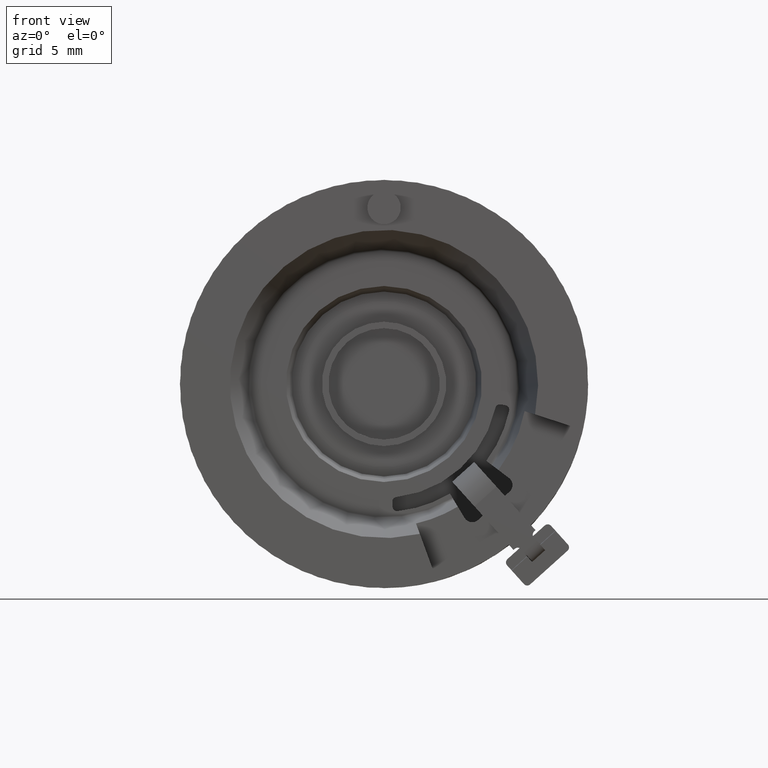
[diagram: clean part render]
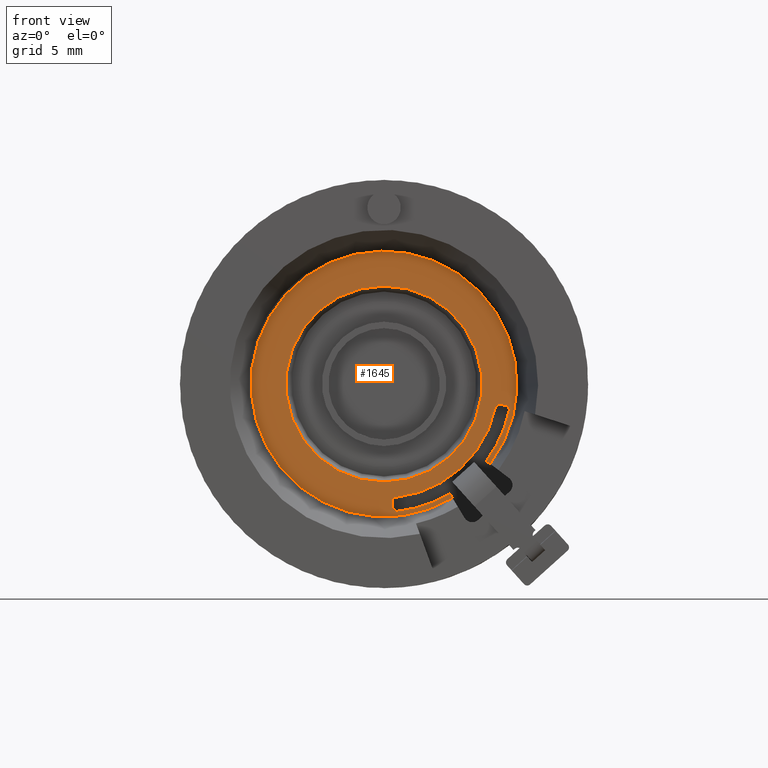
[diagram: same view with one face highlighted and labeled with its STEP entity id]
A machine part, front view. The second image highlights one B-rep face of the part: STEP entity #1645.
In plain terms, the highlighted planar face has unit normal (0, -1, 0).
Its self-contained STEP definition (entity closure, byte-faithful):
#255=DIRECTION('',(-5.150380749100E-1,0.E0,8.571673007021E-1));
#256=VECTOR('',#255,2.691907386034E-1);
#257=CARTESIAN_POINT('',(3.689969440808E0,3.8E0,-6.141140430837E0));
#258=LINE('',#257,#256);
#259=DIRECTION('',(7.986355100473E-1,0.E0,-6.018150231521E-1));
#260=VECTOR('',#259,2.691907386034E-1);
#261=CARTESIAN_POINT('',(5.506806503022E0,3.8E0,-4.149676343484E0));
#262=LINE('',#261,#260);
#263=CARTESIAN_POINT('',(0.E0,3.8E0,0.E0));
#264=DIRECTION('',(0.E0,1.E0,0.E0));
#265=DIRECTION('',(9.779330806408E-1,0.E0,-2.089183806857E-1));
#266=AXIS2_PLACEMENT_3D('',#263,#264,#265);
#268=CARTESIAN_POINT('',(6.509246307949E0,3.8E0,-1.390587173153E0));
#269=DIRECTION('',(0.E0,1.E0,0.E0));
#270=DIRECTION('',(1.736481776669E-1,0.E0,9.848077530122E-1));
#271=AXIS2_PLACEMENT_3D('',#268,#269,#270);
#273=DIRECTION('',(9.848077530122E-1,0.E0,-1.736481776669E-1));
#274=VECTOR('',#273,2.791874538885E-1);
#275=CARTESIAN_POINT('',(6.275826958205E0,3.8E0,-1.106597618989E0));
#276=LINE('',#275,#274);
#277=CARTESIAN_POINT('',(6.234300338816E0,3.8E0,-1.342106780558E0));
#278=DIRECTION('',(0.E0,1.E0,0.E0));
#279=DIRECTION('',(-9.776032597901E-1,0.E0,2.104563290752E-1));
#280=AXIS2_PLACEMENT_3D('',#277,#278,#279);
#282=CARTESIAN_POINT('',(0.E0,3.8E0,0.E0));
#283=DIRECTION('',(0.E0,1.E0,0.E0));
#284=DIRECTION('',(9.776032597901E-1,0.E0,-2.104563290753E-1));
#285=AXIS2_PLACEMENT_3D('',#282,#283,#284);
#287=CARTESIAN_POINT('',(6.830927452216E-1,3.8E0,-6.340436548567E0));
#288=DIRECTION('',(0.E0,1.E0,0.E0));
#289=DIRECTION('',(-9.975640502598E-1,0.E0,-6.975647374412E-2));
#290=AXIS2_PLACEMENT_3D('',#287,#288,#289);
#292=DIRECTION('',(-6.975647374413E-2,0.E0,9.975640502598E-1));
#293=VECTOR('',#292,2.791874538885E-1);
#294=CARTESIAN_POINT('',(4.640081460690E-1,3.8E0,-6.635625637328E0));
#295=LINE('',#294,#293);
#296=CARTESIAN_POINT('',(7.025678775185E-1,3.8E0,-6.618943915850E0));
#297=DIRECTION('',(0.E0,1.E0,0.E0));
#298=DIRECTION('',(1.055520618389E-1,0.E0,-9.944137781837E-1));
#299=AXIS2_PLACEMENT_3D('',#296,#297,#298);
#301=CARTESIAN_POINT('',(0.E0,3.8E0,0.E0));
#302=DIRECTION('',(0.E0,1.E0,0.E0));
#303=DIRECTION('',(5.150380749101E-1,0.E0,-8.571673007021E-1));
#304=AXIS2_PLACEMENT_3D('',#301,#302,#303);
#306=CARTESIAN_POINT('',(0.E0,3.8E0,0.E0));
#307=DIRECTION('',(0.E0,-1.E0,0.E0));
#308=DIRECTION('',(0.E0,0.E0,1.E0));
#309=AXIS2_PLACEMENT_3D('',#306,#307,#308);
#311=CARTESIAN_POINT('',(0.E0,3.8E0,0.E0));
#312=DIRECTION('',(0.E0,-1.E0,0.E0));
#313=DIRECTION('',(0.E0,0.E0,-1.E0));
#314=AXIS2_PLACEMENT_3D('',#311,#312,#313);
#333=CARTESIAN_POINT('',(0.E0,3.8E0,0.E0));
#334=DIRECTION('',(0.E0,-1.E0,0.E0));
#335=DIRECTION('',(7.986355100473E-1,0.E0,-6.018150231520E-1));
#336=AXIS2_PLACEMENT_3D('',#333,#334,#335);
#1083=CARTESIAN_POINT('',(3.689969440808E0,3.8E0,-6.141140430837E0));
#1084=CARTESIAN_POINT('',(3.551325961014E0,3.8E0,-5.910398932054E0));
#1085=VERTEX_POINT('',#1083);
#1086=VERTEX_POINT('',#1084);
#1087=CARTESIAN_POINT('',(7.278098371899E-1,3.8E0,-6.856750284084E0));
#1088=VERTEX_POINT('',#1087);
#1089=CARTESIAN_POINT('',(4.640081460690E-1,3.8E0,-6.635625637328E0));
#1090=VERTEX_POINT('',#1089);
#1091=CARTESIAN_POINT('',(4.445330137721E-1,3.8E0,-6.357118270045E0));
#1092=VERTEX_POINT('',#1091);
#1093=CARTESIAN_POINT('',(6.574767672758E-1,3.8E0,-6.102670177996E0));
#1094=VERTEX_POINT('',#1093);
#1095=CARTESIAN_POINT('',(6.000514076110E0,3.8E0,-1.291777776287E0));
#1096=VERTEX_POINT('',#1095);
#1097=CARTESIAN_POINT('',(6.275826958205E0,3.8E0,-1.106597618989E0));
#1098=VERTEX_POINT('',#1097);
#1099=CARTESIAN_POINT('',(6.550772927338E0,3.8E0,-1.155078011584E0));
#1100=VERTEX_POINT('',#1099);
#1101=CARTESIAN_POINT('',(6.743111444762E0,3.8E0,-1.440548388955E0));
#1102=VERTEX_POINT('',#1101);
#1103=CARTESIAN_POINT('',(5.506806503022E0,3.8E0,-4.149676343484E0));
#1104=VERTEX_POINT('',#1103);
#1105=CARTESIAN_POINT('',(5.721791785846E0,3.8E0,-4.311679374069E0));
#1106=VERTEX_POINT('',#1105);
#1227=CARTESIAN_POINT('',(0.E0,3.8E0,5.281453039297E0));
#1228=CARTESIAN_POINT('',(0.E0,3.8E0,-5.281453039297E0));
#1229=VERTEX_POINT('',#1227);
#1230=VERTEX_POINT('',#1228);
#1610=CARTESIAN_POINT('',(0.E0,3.8E0,0.E0));
#1611=DIRECTION('',(0.E0,-1.E0,0.E0));
#1612=DIRECTION('',(0.E0,0.E0,1.E0));
#1613=AXIS2_PLACEMENT_3D('',#1610,#1611,#1612);
#1614=PLANE('',#1613);
#1616=ORIENTED_EDGE('',*,*,#1615,.F.);
#1618=ORIENTED_EDGE('',*,*,#1617,.F.);
#1619=ORIENTED_EDGE('',*,*,#1563,.F.);
#1620=ORIENTED_EDGE('',*,*,#1601,.F.);
#1622=ORIENTED_EDGE('',*,*,#1621,.F.);
#1624=ORIENTED_EDGE('',*,*,#1623,.F.);
#1626=ORIENTED_EDGE('',*,*,#1625,.F.);
#1628=ORIENTED_EDGE('',*,*,#1627,.T.);
#1630=ORIENTED_EDGE('',*,*,#1629,.F.);
#1632=ORIENTED_EDGE('',*,*,#1631,.F.);
#1634=ORIENTED_EDGE('',*,*,#1633,.F.);
#1636=ORIENTED_EDGE('',*,*,#1635,.F.);
#1637=EDGE_LOOP('',(#1616,#1618,#1619,#1620,#1622,#1624,#1626,#1628,#1630,#1632,
#1634,#1636));
#1638=FACE_OUTER_BOUND('',#1637,.F.);
#1640=ORIENTED_EDGE('',*,*,#1639,.T.);
#1642=ORIENTED_EDGE('',*,*,#1641,.T.);
#1643=EDGE_LOOP('',(#1640,#1642));
#1644=FACE_BOUND('',#1643,.F.);
#1645=ADVANCED_FACE('',(#1638,#1644),#1614,.T.);
#267=CIRCLE('',#266,6.895268785E0);
#272=CIRCLE('',#271,2.3914227E-1);
#281=CIRCLE('',#280,2.3914227E-1);
#286=CIRCLE('',#285,6.13798493E0);
#291=CIRCLE('',#290,2.3914227E-1);
#300=CIRCLE('',#299,2.3914227E-1);
#305=CIRCLE('',#304,6.895268785E0);
#310=CIRCLE('',#309,5.281453039297E0);
#315=CIRCLE('',#314,5.281453039297E0);
#337=CIRCLE('',#336,7.164459523603E0);
#1563=EDGE_CURVE('',#1104,#1106,#262,.T.);
#1601=EDGE_CURVE('',#1102,#1104,#267,.T.);
#1615=EDGE_CURVE('',#1085,#1086,#258,.T.);
#1617=EDGE_CURVE('',#1106,#1085,#337,.T.);
#1621=EDGE_CURVE('',#1100,#1102,#272,.T.);
#1623=EDGE_CURVE('',#1098,#1100,#276,.T.);
#1625=EDGE_CURVE('',#1096,#1098,#281,.T.);
#1627=EDGE_CURVE('',#1096,#1094,#286,.T.);
#1629=EDGE_CURVE('',#1092,#1094,#291,.T.);
#1631=EDGE_CURVE('',#1090,#1092,#295,.T.);
#1633=EDGE_CURVE('',#1088,#1090,#300,.T.);
#1635=EDGE_CURVE('',#1086,#1088,#305,.T.);
#1639=EDGE_CURVE('',#1229,#1230,#310,.T.);
#1641=EDGE_CURVE('',#1230,#1229,#315,.T.);